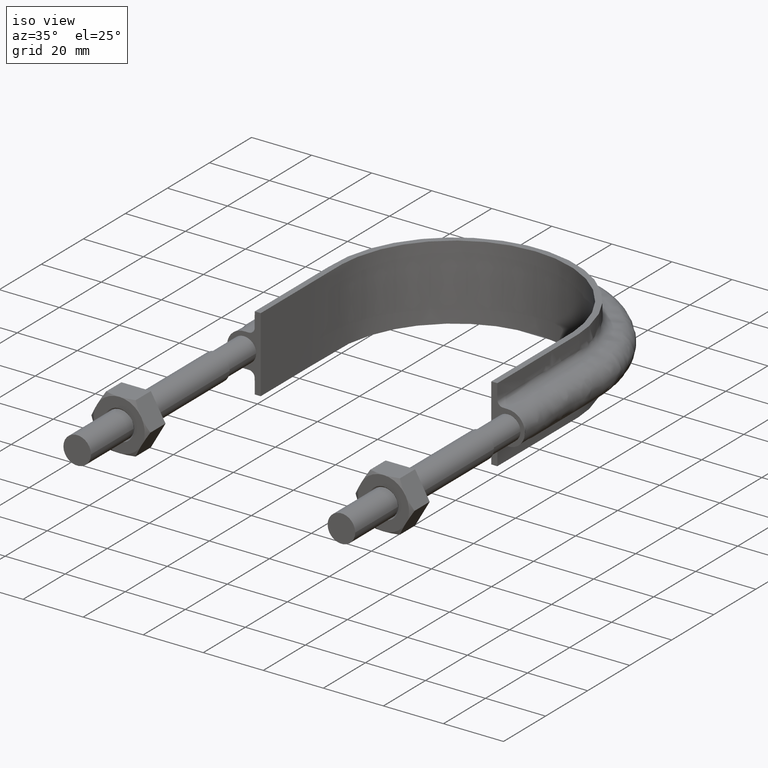
[diagram: clean part render]
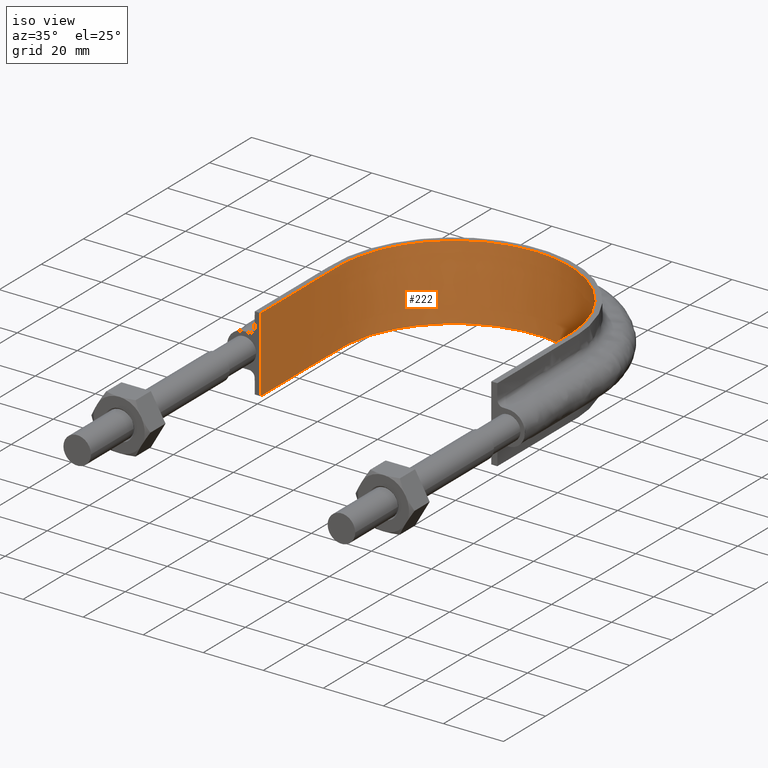
[diagram: same view with one face highlighted and labeled with its STEP entity id]
A machine part, iso view. The second image highlights one B-rep face of the part: STEP entity #222.
In plain terms, the highlighted face is a SurfaceOfExtrusion surface.
Its self-contained STEP definition (entity closure, byte-faithful):
#222 = ADVANCED_FACE( '', ( #304 ), #305, .T. );
#304 = FACE_OUTER_BOUND( '', #476, .T. );
#305 = SURFACE_OF_LINEAR_EXTRUSION( '', #477, #478 );
#476 = EDGE_LOOP( '', ( #1488, #1489, #1490, #1491 ) );
#477 = B_SPLINE_CURVE_WITH_KNOTS( '', 3, ( #1492, #1493, #1494, #1495, #1496, #1497, #1498, #1499, #1500, #1501, #1502, #1503, #1504, #1505, #1506, #1507, #1508 ), .UNSPECIFIED., .F., .F., ( 4, 3, 1, 1, 1, 1, 1, 1, 1, 3, 4 ), ( -7.93017456359102, -7.00000000000000, -6.50000000000000, -6.00000000000000, -5.00000000000000, -4.00000000000000, -3.00000000000000, -2.00000000000000, -1.50000000000000, -1.00000000000000, -0.0698254364089773 ), .UNSPECIFIED. );
#478 = VECTOR( '', #1509, 1000.00000000000 );
#1488 = ORIENTED_EDGE( '', *, *, #2003, .T. );
#1489 = ORIENTED_EDGE( '', *, *, #2013, .T. );
#1490 = ORIENTED_EDGE( '', *, *, #2009, .F. );
#1491 = ORIENTED_EDGE( '', *, *, #2015, .T. );
#1492 = CARTESIAN_POINT( '', ( 38.4000000000000, 79.3000000000000, 12.5000100000909 ) );
#1493 = CARTESIAN_POINT( '', ( 38.4000000000000, 91.7333333333333, 12.5000100000909 ) );
#1494 = CARTESIAN_POINT( '', ( 38.4000000000000, 104.166666666667, 12.5000100000909 ) );
#1495 = CARTESIAN_POINT( '', ( 38.4000000000000, 116.600000000000, 12.5000100000909 ) );
#1496 = CARTESIAN_POINT( '', ( 38.4000000000000, 119.937896038243, 12.5000100000909 ) );
#1497 = CARTESIAN_POINT( '', ( 37.5004323173849, 126.653498701236, 12.5000100000909 ) );
#1498 = CARTESIAN_POINT( '', ( 32.3590360537293, 139.146842750795, 12.5000100000909 ) );
#1499 = CARTESIAN_POINT( '', ( 20.0971465093487, 151.410921736661, 12.5000100000909 ) );
#1500 = CARTESIAN_POINT( '', ( 3.30789466943439E-014, 156.794539131670, 12.5000100000909 ) );
#1501 = CARTESIAN_POINT( '', ( -20.0971465093486, 151.410921736661, 12.5000100000909 ) );
#1502 = CARTESIAN_POINT( '', ( -32.3590360537293, 139.146842750795, 12.5000100000909 ) );
#1503 = CARTESIAN_POINT( '', ( -37.5004323173848, 126.653498701236, 12.5000100000909 ) );
#1504 = CARTESIAN_POINT( '', ( -38.4000000000000, 119.937896038243, 12.5000100000909 ) );
#1505 = CARTESIAN_POINT( '', ( -38.4000000000000, 116.600000000000, 12.5000100000909 ) );
#1506 = CARTESIAN_POINT( '', ( -38.4000000000000, 104.166666666667, 12.5000100000909 ) );
#1507 = CARTESIAN_POINT( '', ( -38.4000000000000, 91.7333333333333, 12.5000100000909 ) );
#1508 = CARTESIAN_POINT( '', ( -38.4000000000000, 79.3000000000000, 12.5000100000909 ) );
#1509 = DIRECTION( '', ( 0.000000000000000, 0.000000000000000, -1.00000000000000 ) );
#2003 = EDGE_CURVE( '', #2155, #2156, #2157, .T. );
#2009 = EDGE_CURVE( '', #2165, #2168, #2169, .T. );
#2013 = EDGE_CURVE( '', #2156, #2168, #2175, .F. );
#2015 = EDGE_CURVE( '', #2165, #2155, #2177, .T. );
#2155 = VERTEX_POINT( '', #2405 );
#2156 = VERTEX_POINT( '', #2406 );
#2157 = LINE( '', #2407, #2408 );
#2165 = VERTEX_POINT( '', #2457 );
#2168 = VERTEX_POINT( '', #2461 );
#2169 = LINE( '', #2462, #2463 );
#2175 = B_SPLINE_CURVE_WITH_KNOTS( '', 3, ( #2509, #2510, #2511, #2512, #2513, #2514, #2515, #2516, #2517, #2518, #2519, #2520, #2521, #2522, #2523, #2524, #2525 ), .UNSPECIFIED., .F., .F., ( 4, 3, 1, 1, 1, 1, 1, 1, 1, 3, 4 ), ( -7.93017456359102, -7.00000000000000, -6.50000000000000, -6.00000000000000, -5.00000000000000, -4.00000000000000, -3.00000000000000, -2.00000000000000, -1.50000000000000, -1.00000000000000, -0.0698254364089773 ), .UNSPECIFIED. );
#2177 = B_SPLINE_CURVE_WITH_KNOTS( '', 3, ( #2543, #2544, #2545, #2546, #2547, #2548, #2549, #2550, #2551, #2552, #2553, #2554, #2555, #2556, #2557, #2558, #2559, #2560, #2561, #2562, #2563, #2564, #2565, #2566, #2567, #2568, #2569, #2570, #2571, #2572, #2573, #2574, #2575, #2576, #2577, #2578, #2579, #2580, #2581, #2582, #2583, #2584, #2585, #2586, #2587, #2588, #2589, #2590, #2591, #2592, #2593, #2594, #2595, #2596, #2597, #2598, #2599, #2600, #2601, #2602, #2603, #2604, #2605, #2606, #2607, #2608, #2609, #2610, #2611, #2612, #2613, #2614, #2615, #2616, #2617, #2618, #2619, #2620, #2621, #2622, #2623, #2624, #2625, #2626, #2627, #2628 ), .UNSPECIFIED., .F., .F., ( 4, 1, 2, 2, 2, 2, 2, 2, 2, 2, 2, 2, 2, 2, 2, 2, 2, 2, 2, 2, 2, 2, 2, 2, 2, 2, 2, 2, 2, 2, 2, 2, 2, 2, 2, 2, 2, 2, 2, 2, 2, 2, 1, 4 ), ( 0.000000000000000, 0.0243379018108088, 0.0365068527162132, 0.0380279715793887, 0.0395490904425643, 0.0425913281689154, 0.0456335658952665, 0.0486758036216176, 0.0547602790743198, 0.0578025168006710, 0.0593236356638465, 0.0608447545270221, 0.0669292299797247, 0.0699714677060759, 0.0714925865692515, 0.0730137054324272, 0.0790981808851297, 0.0851826563378323, 0.0867037752010079, 0.0882248940641836, 0.0912671317905349, 0.0973516072432375, 0.0988727261064131, 0.100393844969589, 0.103436082695940, 0.109520558148643, 0.112562795874994, 0.115605033601345, 0.121689509054048, 0.123210627917223, 0.124731746780399, 0.127773984506750, 0.133858459959453, 0.136900697685804, 0.139942935412156, 0.146027410864858, 0.149069648591210, 0.150590767454385, 0.152111886317561, 0.155154124043912, 0.156675242907088, 0.158196361770264, 0.170365312675669, 0.194703214486479 ), .UNSPECIFIED. );
#2405 = CARTESIAN_POINT( '', ( -38.4000000000000, 79.3000000000000, 12.5000000000000 ) );
#2406 = CARTESIAN_POINT( '', ( -38.4000000000000, 79.3000000000000, -12.5000000000000 ) );
#2407 = CARTESIAN_POINT( '', ( -38.4000000000000, 79.3000000000000, 12.5000100000909 ) );
#2408 = VECTOR( '', #3070, 1000.00000000000 );
#2457 = CARTESIAN_POINT( '', ( 38.4000000000000, 79.3000000000000, 12.5000000000000 ) );
#2461 = CARTESIAN_POINT( '', ( 38.4000000000000, 79.3000000000000, -12.5000000000000 ) );
#2462 = CARTESIAN_POINT( '', ( 38.4000000000000, 79.3000000000000, 12.5000100000909 ) );
#2463 = VECTOR( '', #3074, 1000.00000000000 );
#2509 = CARTESIAN_POINT( '', ( 38.4000000000000, 79.3000000000000, -12.5000000000000 ) );
#2510 = CARTESIAN_POINT( '', ( 38.4000000000000, 91.7333333333333, -12.5000000000000 ) );
#2511 = CARTESIAN_POINT( '', ( 38.4000000000000, 104.166666666667, -12.5000000000000 ) );
#2512 = CARTESIAN_POINT( '', ( 38.4000000000000, 116.600000000000, -12.5000000000000 ) );
#2513 = CARTESIAN_POINT( '', ( 38.4000000000000, 119.937896038243, -12.5000000000000 ) );
#2514 = CARTESIAN_POINT( '', ( 37.5004323173849, 126.653498701236, -12.5000000000000 ) );
#2515 = CARTESIAN_POINT( '', ( 32.3590360537293, 139.146842750795, -12.5000000000000 ) );
#2516 = CARTESIAN_POINT( '', ( 20.0971465093487, 151.410921736661, -12.5000000000000 ) );
#2517 = CARTESIAN_POINT( '', ( 3.30789466943439E-014, 156.794539131670, -12.5000000000000 ) );
#2518 = CARTESIAN_POINT( '', ( -20.0971465093486, 151.410921736661, -12.5000000000000 ) );
#2519 = CARTESIAN_POINT( '', ( -32.3590360537293, 139.146842750795, -12.5000000000000 ) );
#2520 = CARTESIAN_POINT( '', ( -37.5004323173848, 126.653498701236, -12.5000000000000 ) );
#2521 = CARTESIAN_POINT( '', ( -38.4000000000000, 119.937896038243, -12.5000000000000 ) );
#2522 = CARTESIAN_POINT( '', ( -38.4000000000000, 116.600000000000, -12.5000000000000 ) );
#2523 = CARTESIAN_POINT( '', ( -38.4000000000000, 104.166666666667, -12.5000000000000 ) );
#2524 = CARTESIAN_POINT( '', ( -38.4000000000000, 91.7333333333333, -12.5000000000000 ) );
#2525 = CARTESIAN_POINT( '', ( -38.4000000000000, 79.3000000000000, -12.5000000000000 ) );
#2543 = CARTESIAN_POINT( '', ( 38.4000000000000, 79.3000000000000, 12.5000000000000 ) );
#2544 = CARTESIAN_POINT( '', ( 38.4000000000000, 87.4126339369366, 12.5000000000000 ) );
#2545 = CARTESIAN_POINT( '', ( 38.4000000000000, 99.5815848423416, 12.5000000000000 ) );
#2546 = CARTESIAN_POINT( '', ( 38.4000000000000, 111.750535747747, 12.5000000000000 ) );
#2547 = CARTESIAN_POINT( '', ( 38.4000000000000, 116.313892337273, 12.5000000000000 ) );
#2548 = CARTESIAN_POINT( '', ( 38.4027743076037, 116.821119409890, 12.5000000000000 ) );
#2549 = CARTESIAN_POINT( '', ( 38.3830167791574, 117.833863695679, 12.5000000000000 ) );
#2550 = CARTESIAN_POINT( '', ( 38.3628782069929, 118.339542614440, 12.5000000000000 ) );
#2551 = CARTESIAN_POINT( '', ( 38.2722040230530, 119.854534897765, 12.5000000000000 ) );
#2552 = CARTESIAN_POINT( '', ( 38.1714849409614, 120.861808856702, 12.5000000000000 ) );
#2553 = CARTESIAN_POINT( '', ( 37.8904277266656, 122.870977156620, 12.5000000000000 ) );
#2554 = CARTESIAN_POINT( '', ( 37.7100929165159, 123.872871722061, 12.5000000000000 ) );
#2555 = CARTESIAN_POINT( '', ( 37.2682777085645, 125.871178091473, 12.5000000000000 ) );
#2556 = CARTESIAN_POINT( '', ( 37.0058649207665, 126.869209598004, 12.5000000000000 ) );
#2557 = CARTESIAN_POINT( '', ( 36.1099085355125, 129.800428328994, 12.5000000000000 ) );
#2558 = CARTESIAN_POINT( '', ( 35.3652812283339, 131.689277860510, 12.5000000000000 ) );
#2559 = CARTESIAN_POINT( '', ( 34.0270721353677, 134.424482046523, 12.5000000000000 ) );
#2560 = CARTESIAN_POINT( '', ( 33.5438803306413, 135.319763573667, 12.5000000000000 ) );
#2561 = CARTESIAN_POINT( '', ( 32.7614856080270, 136.637153374160, 12.5000000000000 ) );
#2562 = CARTESIAN_POINT( '', ( 32.4911122498971, 137.072039439345, 12.5000000000000 ) );
#2563 = CARTESIAN_POINT( '', ( 31.9310694523165, 137.933259191099, 12.5000000000000 ) );
#2564 = CARTESIAN_POINT( '', ( 31.6416548483075, 138.359099832881, 12.5000000000000 ) );
#2565 = CARTESIAN_POINT( '', ( 30.1598500561494, 140.447972709778, 12.5000000000000 ) );
#2566 = CARTESIAN_POINT( '', ( 28.8544690281687, 142.006253780205, 12.5000000000000 ) );
#2567 = CARTESIAN_POINT( '', ( 26.7242269234557, 144.181725572989, 12.5000000000000 ) );
#2568 = CARTESIAN_POINT( '', ( 25.9852601970118, 144.879711605143, 12.5000000000000 ) );
#2569 = CARTESIAN_POINT( '', ( 24.8327554866622, 145.885251295440, 12.5000000000000 ) );
#2570 = CARTESIAN_POINT( '', ( 24.4412331318478, 146.213513644747, 12.5000000000000 ) );
#2571 = CARTESIAN_POINT( '', ( 23.6432116170532, 146.855950622699, 12.5000000000000 ) );
#2572 = CARTESIAN_POINT( '', ( 23.2357844532915, 147.170799679600, 12.5000000000000 ) );
#2573 = CARTESIAN_POINT( '', ( 21.1728995967702, 148.699717522120, 12.5000000000000 ) );
#2574 = CARTESIAN_POINT( '', ( 19.4461214786926, 149.775116348712, 12.5000000000000 ) );
#2575 = CARTESIAN_POINT( '', ( 15.8424012951629, 151.635807157406, 12.5000000000000 ) );
#2576 = CARTESIAN_POINT( '', ( 13.9663663217126, 152.422851581443, 12.5000000000000 ) );
#2577 = CARTESIAN_POINT( '', ( 11.5271708169515, 153.224762065559, 12.5000000000000 ) );
#2578 = CARTESIAN_POINT( '', ( 11.0351210878861, 153.375746188077, 12.5000000000000 ) );
#2579 = CARTESIAN_POINT( '', ( 10.0502423640910, 153.656786422983, 12.5000000000000 ) );
#2580 = CARTESIAN_POINT( '', ( 9.55637016529651, 153.787194835959, 12.5000000000000 ) );
#2581 = CARTESIAN_POINT( '', ( 8.07051418322889, 154.148502213832, 12.5000000000000 ) );
#2582 = CARTESIAN_POINT( '', ( 7.07429985999602, 154.349545743025, 12.5000000000000 ) );
#2583 = CARTESIAN_POINT( '', ( 4.06886690428308, 154.834187354575, 12.5000000000000 ) );
#2584 = CARTESIAN_POINT( '', ( 2.04300780873499, 155.000351662540, 12.5000000000000 ) );
#2585 = CARTESIAN_POINT( '', ( -0.518810472445948, 154.999911391897, 12.5000000000000 ) );
#2586 = CARTESIAN_POINT( '', ( -1.03384934041106, 154.989267949139, 12.5000000000000 ) );
#2587 = CARTESIAN_POINT( '', ( -2.05999227101008, 154.947123645522, 12.5000000000000 ) );
#2588 = CARTESIAN_POINT( '', ( -2.57100025916348, 154.915690794062, 12.5000000000000 ) );
#2589 = CARTESIAN_POINT( '', ( -4.09798525337103, 154.791070625937, 12.5000000000000 ) );
#2590 = CARTESIAN_POINT( '', ( -5.10793619044547, 154.667626472700, 12.5000000000000 ) );
#2591 = CARTESIAN_POINT( '', ( -8.11438462156117, 154.179780837089, 12.5000000000000 ) );
#2592 = CARTESIAN_POINT( '', ( -10.0876738344827, 153.698850790019, 12.5000000000000 ) );
#2593 = CARTESIAN_POINT( '', ( -13.0003199951629, 152.740024822744, 12.5000000000000 ) );
#2594 = CARTESIAN_POINT( '', ( -13.9672170977485, 152.378727202231, 12.5000000000000 ) );
#2595 = CARTESIAN_POINT( '', ( -15.8546719802244, 151.585984907772, 12.5000000000000 ) );
#2596 = CARTESIAN_POINT( '', ( -16.7774313079126, 151.154197465975, 12.5000000000000 ) );
#2597 = CARTESIAN_POINT( '', ( -19.4833402127080, 149.753490344414, 12.5000000000000 ) );
#2598 = CARTESIAN_POINT( '', ( -21.2036319794208, 148.678400373100, 12.5000000000000 ) );
#2599 = CARTESIAN_POINT( '', ( -23.2504143165321, 147.159581599005, 12.5000000000000 ) );
#2600 = CARTESIAN_POINT( '', ( -23.6545765017688, 146.847044416500, 12.5000000000000 ) );
#2601 = CARTESIAN_POINT( '', ( -24.4524162332017, 146.204260920726, 12.5000000000000 ) );
#2602 = CARTESIAN_POINT( '', ( -24.8469576925088, 145.873240647292, 12.5000000000000 ) );
#2603 = CARTESIAN_POINT( '', ( -26.0068899055367, 144.860053871450, 12.5000000000000 ) );
#2604 = CARTESIAN_POINT( '', ( -26.7486892538444, 144.158088969384, 12.5000000000000 ) );
#2605 = CARTESIAN_POINT( '', ( -28.8823748109421, 141.974991317251, 12.5000000000000 ) );
#2606 = CARTESIAN_POINT( '', ( -30.1833131714199, 140.417299289572, 12.5000000000000 ) );
#2607 = CARTESIAN_POINT( '', ( -31.9490860628639, 137.924495268019, 12.5000000000000 ) );
#2608 = CARTESIAN_POINT( '', ( -32.5065492449487, 137.067357440084, 12.5000000000000 ) );
#2609 = CARTESIAN_POINT( '', ( -33.5561706257855, 135.298108495221, 12.5000000000000 ) );
#2610 = CARTESIAN_POINT( '', ( -34.0419906193418, 134.396127879280, 12.5000000000000 ) );
#2611 = CARTESIAN_POINT( '', ( -35.3824842141312, 131.649725427965, 12.5000000000000 ) );
#2612 = CARTESIAN_POINT( '', ( -36.1236281599900, 129.761104672605, 12.5000000000000 ) );
#2613 = CARTESIAN_POINT( '', ( -37.0127103209049, 126.843968621002, 12.5000000000000 ) );
#2614 = CARTESIAN_POINT( '', ( -37.2717329928219, 125.857467876968, 12.5000000000000 ) );
#2615 = CARTESIAN_POINT( '', ( -37.6030425852180, 124.356073245167, 12.5000000000000 ) );
#2616 = CARTESIAN_POINT( '', ( -37.7041051856696, 123.850877289074, 12.5000000000000 ) );
#2617 = CARTESIAN_POINT( '', ( -37.8853786337735, 122.841026729265, 12.5000000000000 ) );
#2618 = CARTESIAN_POINT( '', ( -37.9657364586178, 122.335935616760, 12.5000000000000 ) );
#2619 = CARTESIAN_POINT( '', ( -38.1763323138402, 120.820170574568, 12.5000000000000 ) );
#2620 = CARTESIAN_POINT( '', ( -38.2761686057870, 119.809006164411, 12.5000000000000 ) );
#2621 = CARTESIAN_POINT( '', ( -38.3651025185759, 118.291278313189, 12.5000000000000 ) );
#2622 = CARTESIAN_POINT( '', ( -38.3845912942189, 117.785205181846, 12.5000000000000 ) );
#2623 = CARTESIAN_POINT( '', ( -38.4030301939459, 116.772727562863, 12.5000000000000 ) );
#2624 = CARTESIAN_POINT( '', ( -38.4000000000000, 116.266291126151, 12.5000000000000 ) );
#2625 = CARTESIAN_POINT( '', ( -38.4000000000000, 111.708803179092, 12.5000000000000 ) );
#2626 = CARTESIAN_POINT( '', ( -38.4000000000000, 99.5555019869321, 12.5000000000000 ) );
#2627 = CARTESIAN_POINT( '', ( -38.4000000000000, 87.4022007947728, 12.5000000000000 ) );
#2628 = CARTESIAN_POINT( '', ( -38.4000000000000, 79.3000000000000, 12.5000000000000 ) );
#3070 = DIRECTION( '', ( 0.000000000000000, 0.000000000000000, -1.00000000000000 ) );
#3074 = DIRECTION( '', ( 0.000000000000000, 0.000000000000000, -1.00000000000000 ) );